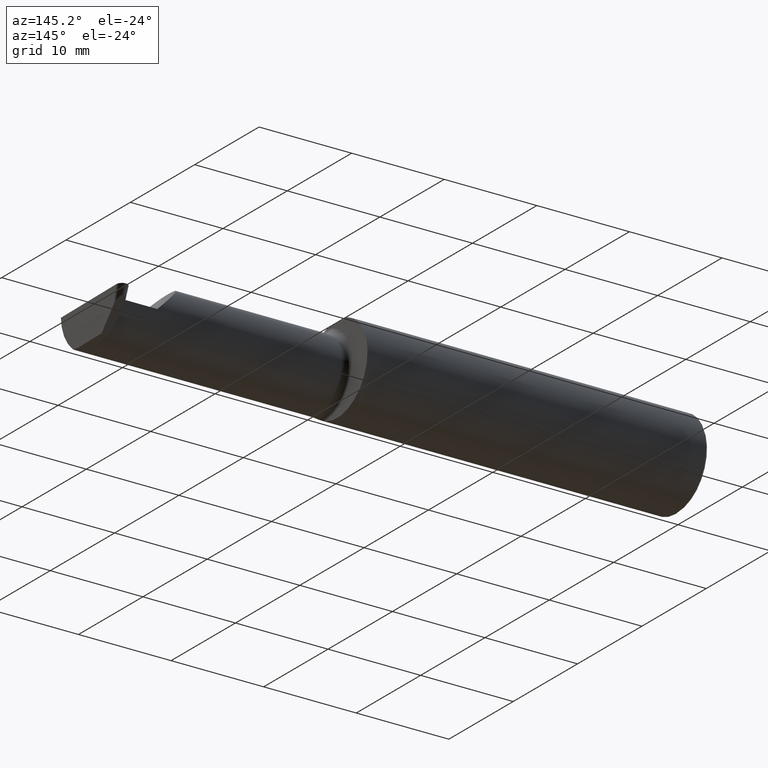
[diagram: clean part render]
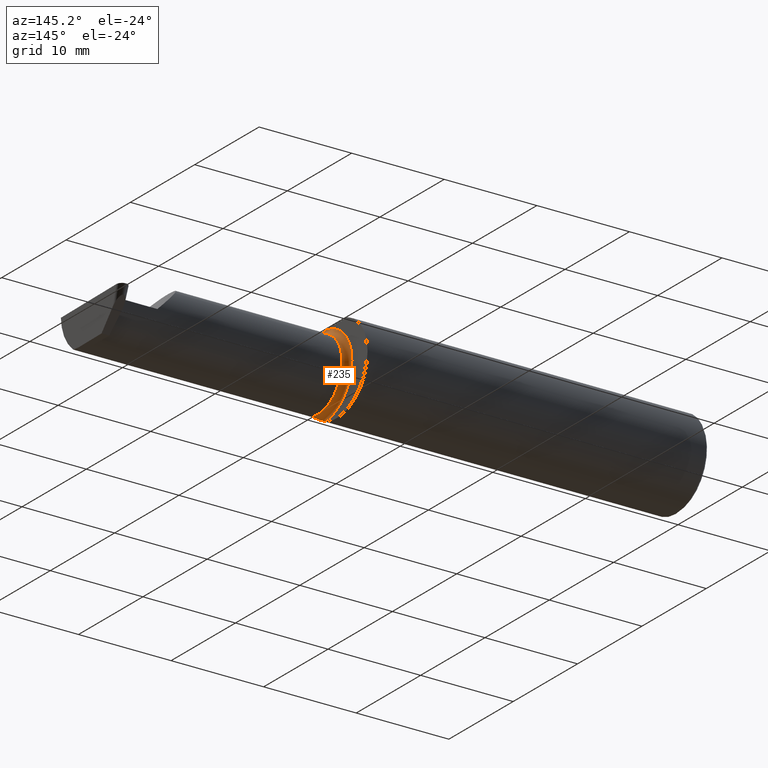
[diagram: same view with one face highlighted and labeled with its STEP entity id]
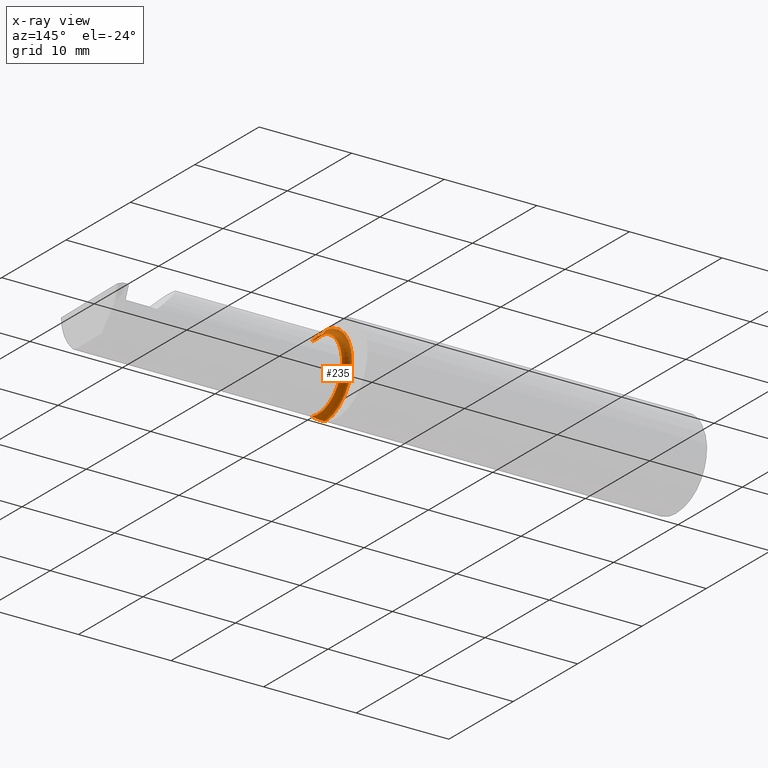
[diagram: x-ray of the same camera — body ghosted, the highlighted face saturated]
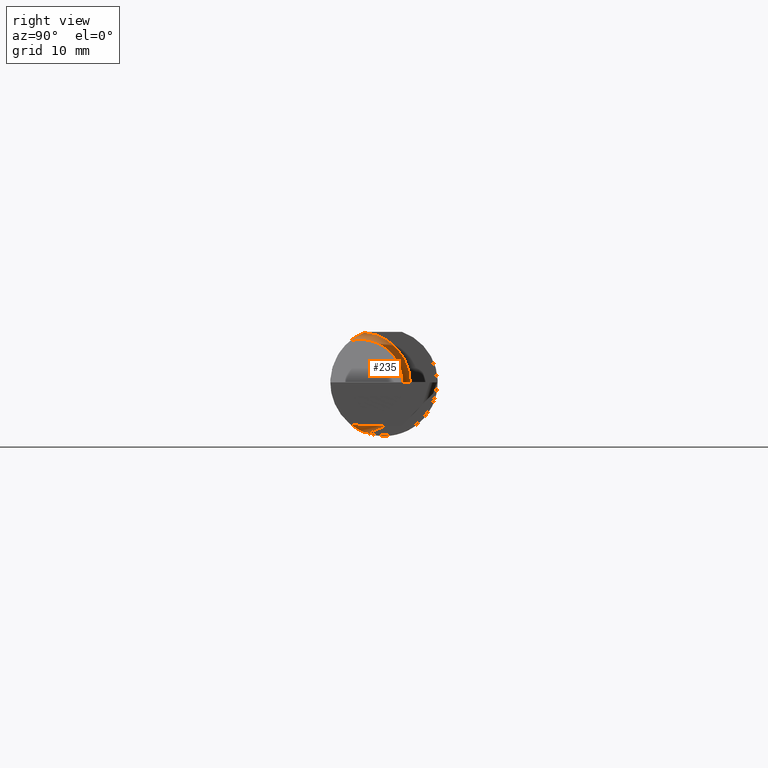
[diagram: same view with one face highlighted and labeled with its STEP entity id]
A machine part, auxiliary view. The second image highlights one B-rep face of the part: STEP entity #235.
The next image is the same camera in x-ray: the body ghosted, the highlighted face saturated — about 0% of this face is hidden behind the body in this view.
A second angle (right view) of the same face is appended — the face is thin or edge-on in the first view.
In plain terms, the highlighted toroidal blend (fillet) surface has major radius 4.445 mm and minor (blend) radius 0.635 mm.
Its self-contained STEP definition (entity closure, byte-faithful):
#16 = FACE_OUTER_BOUND ( 'NONE', #305, .T. ) ;
#23 = CARTESIAN_POINT ( 'NONE',  ( 1.465004157323697376, -0.1137044537483316020, 0.1489098419202428691 ) ) ;
#31 = VERTEX_POINT ( 'NONE', #35 ) ;
#35 = CARTESIAN_POINT ( 'NONE',  ( 1.474999999999999867, -0.1172600179964005812, -0.1461167706989303650 ) ) ;
#39 = EDGE_CURVE ( 'NONE', #31, #238, #110, .T. ) ;
#41 = CARTESIAN_POINT ( 'NONE',  ( 1.450000000000000178, -0.06851976604679066440, -0.1743704796142198643 ) ) ;
#47 = VERTEX_POINT ( 'NONE', #463 ) ;
#52 = DIRECTION ( 'NONE',  ( 0.000000000000000000, -1.000000000000000000, 0.000000000000000000 ) ) ;
#63 = CARTESIAN_POINT ( 'NONE',  ( 1.452945243422983035, -0.09312071749437417223, 0.1626553472577906556 ) ) ;
#71 = DIRECTION ( 'NONE',  ( 5.107097978105302334E-17, -1.000000000000000000, 0.000000000000000000 ) ) ;
#76 = CARTESIAN_POINT ( 'NONE',  ( 1.458475602106621638, -0.1064978748893405519, 0.1542035505680384444 ) ) ;
#93 = CARTESIAN_POINT ( 'NONE',  ( 1.458439486659307338, -0.1064616213911158682, -0.1542305641651500470 ) ) ;
#97 = CARTESIAN_POINT ( 'NONE',  ( 1.452960551809340473, -0.09317341542745746774, -0.1626248379125196930 ) ) ;
#110 = B_SPLINE_CURVE_WITH_KNOTS ( 'NONE', 3,
 ( #407, #466, #687, #412, #355, #93, #627, #97, #626, #193, #307, #41 ),
 .UNSPECIFIED., .F., .F.,
 ( 4, 2, 2, 2, 2, 4 ),
 ( 1.967976973658592312E-07, 0.0002120314145722273266, 0.0004238660314470887587, 0.0008475352651967989377, 0.001271204498946509279, 0.001694873732696219621 ),
 .UNSPECIFIED. ) ;
#116 = ORIENTED_EDGE ( 'NONE', *, *, #306, .F. ) ;
#119 = CARTESIAN_POINT ( 'NONE',  ( 1.450353553376444893, -0.07868116735658675642, 0.1701139256562800572 ) ) ;
#145 = VERTEX_POINT ( 'NONE', #161 ) ;
#161 = CARTESIAN_POINT ( 'NONE',  ( 1.474999999999999867, -0.1172600179964005812, 0.1461167706989303927 ) ) ;
#176 = CARTESIAN_POINT ( 'NONE',  ( 1.474999999999999867, -0.1172600179964005812, 0.1461167706989303927 ) ) ;
#187 = CARTESIAN_POINT ( 'NONE',  ( 1.450000000000000178, -0.08335000000000004905, 0.000000000000000000 ) ) ;
#193 = CARTESIAN_POINT ( 'NONE',  ( 1.450358271039144054, -0.07873626113568082951, -0.1700887912276896341 ) ) ;
#198 = ORIENTED_EDGE ( 'NONE', *, *, #586, .T. ) ;
#222 = CARTESIAN_POINT ( 'NONE',  ( 1.472161949849308371, -0.1172600179964060768, 0.1461167706989261184 ) ) ;
#235 = ADVANCED_FACE ( 'NONE', ( #16 ), #481, .F. ) ;
#238 = VERTEX_POINT ( 'NONE', #390 ) ;
#261 = CARTESIAN_POINT ( 'NONE',  ( 1.474999999999999867, -0.08335000000000004905, 0.000000000000000000 ) ) ;
#262 = AXIS2_PLACEMENT_3D ( 'NONE', #187, #400, #619 ) ;
#296 = CARTESIAN_POINT ( 'NONE',  ( 1.451829077486400443, -0.08839624499054646312, 0.1652742498708037744 ) ) ;
#305 = EDGE_LOOP ( 'NONE', ( #198, #309, #549, #116 ) ) ;
#306 = EDGE_CURVE ( 'NONE', #47, #238, #663, .T. ) ;
#307 = CARTESIAN_POINT ( 'NONE',  ( 1.449999999999999512, -0.07368234487347195827, -0.1723418180300747282 ) ) ;
#309 = ORIENTED_EDGE ( 'NONE', *, *, #442, .T. ) ;
#329 = CARTESIAN_POINT ( 'NONE',  ( 1.463163223656403167, -0.1119926267047277324, 0.1502091925606063028 ) ) ;
#355 = CARTESIAN_POINT ( 'NONE',  ( 1.463203859946834440, -0.1120371980050638844, -0.1501764597936559309 ) ) ;
#374 = AXIS2_PLACEMENT_3D ( 'NONE', #261, #536, #52 ) ;
#390 = CARTESIAN_POINT ( 'NONE',  ( 1.450000000000000178, -0.06851976604679066440, -0.1743704796142198643 ) ) ;
#400 = DIRECTION ( 'NONE',  ( -1.000000000000000000, -5.107097978105302334E-17, -0.000000000000000000 ) ) ;
#401 = CARTESIAN_POINT ( 'NONE',  ( 1.449999999999999734, -0.07367581953296700736, 0.1723443821957854338 ) ) ;
#404 = B_SPLINE_CURVE_WITH_KNOTS ( 'NONE', 3,
 ( #599, #401, #119, #296, #63, #555, #76, #329, #23, #446, #222, #176 ),
 .UNSPECIFIED., .F., .F.,
 ( 4, 2, 2, 2, 2, 4 ),
 ( 4.423516731080825304E-05, 0.0004615475116586706503, 0.0008788598560065329730, 0.001296172200354395350, 0.001504828372528325834, 0.001713484544702256317 ),
 .UNSPECIFIED. ) ;
#407 = CARTESIAN_POINT ( 'NONE',  ( 1.474999999999999867, -0.1172600179964005812, -0.1461167706989303650 ) ) ;
#412 = CARTESIAN_POINT ( 'NONE',  ( 1.465028532764138580, -0.1137241120808235861, -0.1488947809299403513 ) ) ;
#442 = EDGE_CURVE ( 'NONE', #145, #31, #506, .T. ) ;
#446 = CARTESIAN_POINT ( 'NONE',  ( 1.469481469043492083, -0.1163560528186165510, 0.1468472430636323656 ) ) ;
#453 = DIRECTION ( 'NONE',  ( -1.000000000000000000, -5.107097978105302334E-17, -0.000000000000000000 ) ) ;
#460 = AXIS2_PLACEMENT_3D ( 'NONE', #561, #453, #71 ) ;
#463 = CARTESIAN_POINT ( 'NONE',  ( 1.450000000000000178, -0.06851976604679066440, 0.1743704796142198643 ) ) ;
#466 = CARTESIAN_POINT ( 'NONE',  ( 1.472174967710399462, -0.1172600179964005812, -0.1461167706989303927 ) ) ;
#481 = TOROIDAL_SURFACE ( 'NONE', #460, 0.1749999999999999889, 0.02499999999999993547 ) ;
#506 = CIRCLE ( 'NONE', #374, 0.1499999999999999944 ) ;
#536 = DIRECTION ( 'NONE',  ( -1.000000000000000000, -5.107097978105302334E-17, -0.000000000000000000 ) ) ;
#549 = ORIENTED_EDGE ( 'NONE', *, *, #39, .T. ) ;
#555 = CARTESIAN_POINT ( 'NONE',  ( 1.456287624083520083, -0.1021858045380144436, 0.1571187174372875028 ) ) ;
#561 = CARTESIAN_POINT ( 'NONE',  ( 1.474999999999999867, -0.08335000000000006293, 0.000000000000000000 ) ) ;
#586 = EDGE_CURVE ( 'NONE', #47, #145, #404, .T. ) ;
#599 = CARTESIAN_POINT ( 'NONE',  ( 1.450000000000000178, -0.06851976604679066440, 0.1743704796142198643 ) ) ;
#619 = DIRECTION ( 'NONE',  ( 0.000000000000000000, -1.000000000000000000, 0.000000000000000000 ) ) ;
#626 = CARTESIAN_POINT ( 'NONE',  ( 1.451843912362378308, -0.08846956905169092722, -0.1652353808078972086 ) ) ;
#627 = CARTESIAN_POINT ( 'NONE',  ( 1.456304331342287872, -0.1022198306720690925, -0.1570962426853818594 ) ) ;
#663 = CIRCLE ( 'NONE', #262, 0.1749999999999999889 ) ;
#687 = CARTESIAN_POINT ( 'NONE',  ( 1.469511795768554840, -0.1163687266324234804, -0.1468371510166788796 ) ) ;